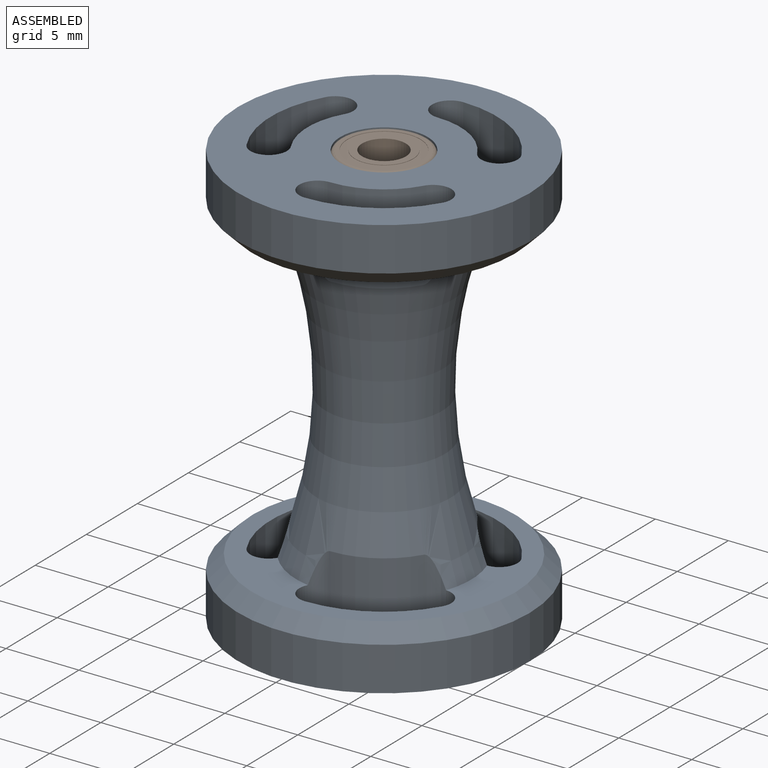
[diagram: assembled view]
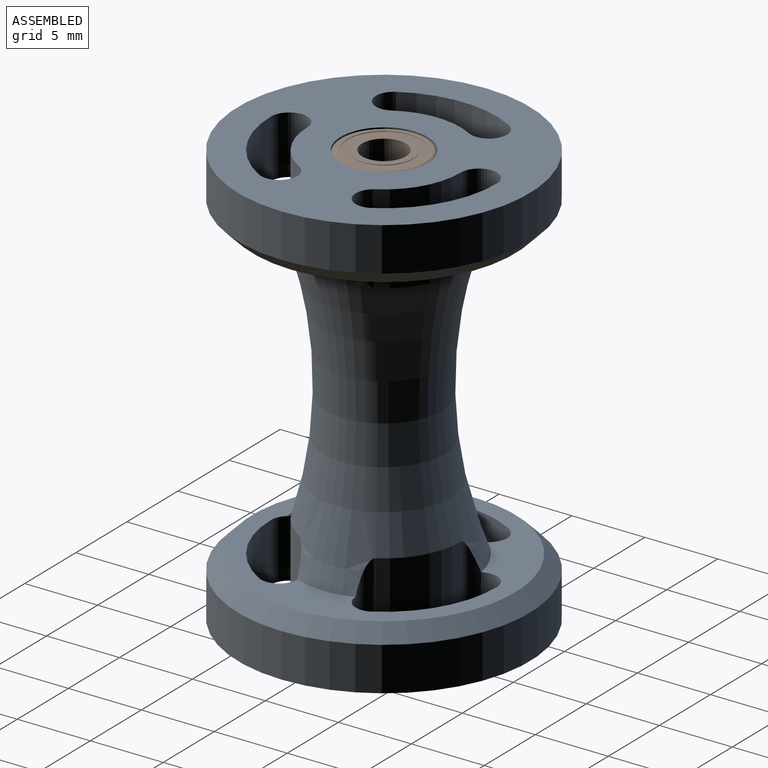
[diagram: assembled view, second angle]
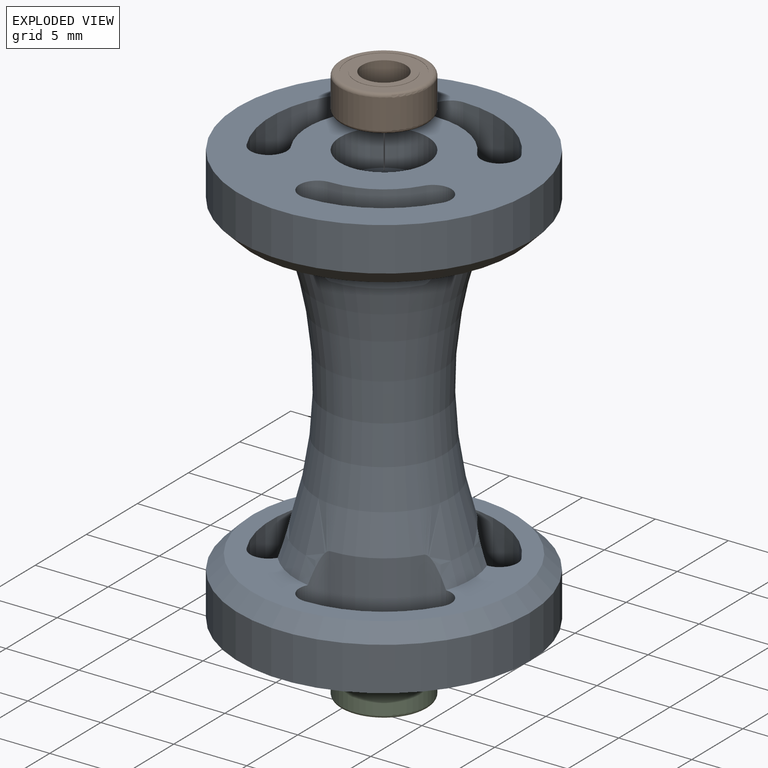
[diagram: exploded view]
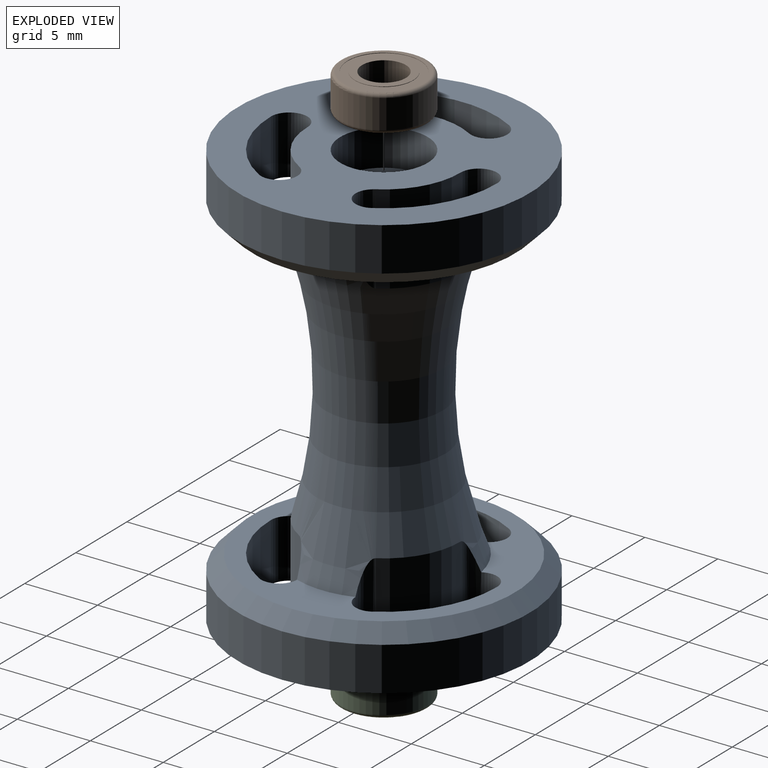
[diagram: exploded view, second angle]
ASSEMBLY  parts=3 mates=4
PART A: 38 faces, bbox 26.6x26.6x40.6 mm
  f0: cylinder r=2mm len=24mm, axis (0,0,-1), area 301.6mm2, adj f33,f35
  f1: cylinder r=10mm len=20mm, axis (0,0,-1), area 188.5mm2, adj f7,f37
  f2: plane 18x18mm, normal (0,0,1), area 92.3mm2, adj f3,f8,f10,f11,f13,f14,f15,f17
  f3: torus R=32.56mm, axis (0,0,-1), area 530.3mm2, adj f2,f5,f8,f9,f10,f12,f13,f15
  f4: cylinder r=10mm len=20mm, axis (0,0,-1), area 188.5mm2, adj f6,f36
  f5: plane 18x18mm, normal (0,0,-1), area 92.3mm2, adj f3,f20,f21,f23,f24,f25,f26,f28
  f6: plane 20x20mm, normal (0,0,1), area 220.1mm2, adj f4,f20,f21,f22,f23,f24,f25,f26
  f7: plane 20x20mm, normal (0,0,-1), area 220.1mm2, adj f1,f8,f9,f10,f11,f12,f13,f14
  f8: cylinder r=1.25mm len=6.14mm, axis (0,0,-1), area 17.5mm2, adj f2,f3,f7,f9,f11
  f9: cylinder r=5.25mm len=6.14mm, axis (0,0,-1), area 33.8mm2, adj f3,f7,f8,f10
  f10: cylinder r=1.25mm len=6.14mm, axis (0,0,-1), area 17.5mm2, adj f2,f3,f7,f9,f11
  f11: cylinder r=7.75mm len=6.71mm, axis (0,0,-1), area 32.5mm2, adj f2,f7,f8,f10
  f12: cylinder r=5.25mm len=6.14mm, axis (0,0,-1), area 33.8mm2, adj f3,f7,f13,f15
  f13: cylinder r=1.25mm len=6.14mm, axis (0,0,-1), area 17.5mm2, adj f2,f3,f7,f12,f14
  f14: cylinder r=7.75mm len=7.75mm, axis (0,0,-1), area 32.5mm2, adj f2,f7,f13,f15
  f15: cylinder r=1.25mm len=6.14mm, axis (0,0,-1), area 17.5mm2, adj f2,f3,f7,f12,f14
  f16: cylinder r=5.25mm len=6.14mm, axis (0,0,-1), area 33.8mm2, adj f3,f7,f17,f19
  f17: cylinder r=1.25mm len=6.14mm, axis (0,0,-1), area 17.5mm2, adj f2,f3,f7,f16,f18
  f18: cylinder r=7.75mm len=6.71mm, axis (0,0,-1), area 32.5mm2, adj f2,f7,f17,f19
  f19: cylinder r=1.25mm len=6.14mm, axis (0,0,-1), area 17.5mm2, adj f2,f3,f7,f16,f18
  f20: cylinder r=7.75mm len=6.71mm, axis (0,0,-1), area 32.5mm2, adj f5,f6,f21,f23
  f21: cylinder r=1.25mm len=6.14mm, axis (0,0,-1), area 17.5mm2, adj f3,f5,f6,f20,f22
  f22: cylinder r=5.25mm len=6.14mm, axis (0,0,-1), area 33.8mm2, adj f3,f6,f21,f23
  f23: cylinder r=1.25mm len=6.14mm, axis (0,0,-1), area 17.5mm2, adj f3,f5,f6,f20,f22
  f24: cylinder r=7.75mm len=7.75mm, axis (0,0,-1), area 32.5mm2, adj f5,f6,f25,f26
  f25: cylinder r=1.25mm len=6.14mm, axis (0,0,-1), area 17.5mm2, adj f3,f5,f6,f24,f27
  f26: cylinder r=1.25mm len=6.14mm, axis (0,0,-1), area 17.5mm2, adj f3,f5,f6,f24,f27
  f27: cylinder r=5.25mm len=6.14mm, axis (0,0,-1), area 33.8mm2, adj f3,f6,f25,f26
  f28: cylinder r=7.75mm len=6.71mm, axis (0,0,-1), area 32.5mm2, adj f5,f6,f29,f30
  f29: cylinder r=1.25mm len=6.14mm, axis (0,0,-1), area 17.5mm2, adj f3,f5,f6,f28,f31
  f30: cylinder r=1.25mm len=6.14mm, axis (0,0,-1), area 17.5mm2, adj f3,f5,f6,f28,f31
  f31: cylinder r=5.25mm len=6.14mm, axis (0,0,-1), area 33.8mm2, adj f3,f6,f29,f30
  f32: cylinder r=3mm len=6mm, axis (0,0,-1), area 47.1mm2, adj f7,f33
  f33: plane 6x6mm, normal (0,0,-1), area 15.7mm2, adj f0,f32
  f34: cylinder r=3mm len=6mm, axis (0,0,1), area 47.1mm2, adj f6,f35
  f35: plane 6x6mm, normal (0,0,1), area 15.7mm2, adj f0,f34
  f36: cone r=10mm half-angle=45deg, axis (0,0,1), area 84.4mm2, adj f4,f5
  f37: cone r=9mm half-angle=45deg, axis (0,0,-1), area 84.4mm2, adj f1,f2
PART B: 14 faces, bbox 6.5x6.5x2.5 mm
  f0: plane 4x4mm, normal (0,0,-1), area 5.5mm2, adj f2,f9
  f1: plane 4x4mm, normal (0,0,1), area 5.5mm2, adj f2,f6
  f2: cylinder r=1.5mm len=3mm, axis (0,0,-1), area 23.6mm2, adj f0,f1
  f3: cylinder r=3mm len=6mm, axis (0,0,-1), area 37.7mm2, adj f12,f13
  f4: plane 5.5x5.5mm, normal (0,0,1), area 4.1mm2, adj f7,f13
  f5: plane 5.5x5.5mm, normal (0,0,-1), area 4.1mm2, adj f10,f12
  f6: cylinder r=2mm len=4mm, axis (0,0,1), area 0.3mm2, adj f1,f8
  f7: cylinder r=2.5mm len=5mm, axis (0,0,1), area 0.4mm2, adj f4,f8
  f8: plane 5x5mm, normal (0,0,1), area 7.1mm2, adj f6,f7
  f9: cylinder r=2mm len=4mm, axis (0,0,-1), area 0.3mm2, adj f0,f11
  f10: cylinder r=2.5mm len=5mm, axis (0,0,-1), area 0.4mm2, adj f5,f11
  f11: plane 5x5mm, normal (0,0,-1), area 7.1mm2, adj f9,f10
  f12: torus R=2.75mm, axis (0,0,1), area 7.2mm2, adj f3,f5
  f13: torus R=2.75mm, axis (0,0,1), area 7.2mm2, adj f3,f4
PART C: same geometry as B
PLACE A t=(-13.21,0.88,-12.77)mm
PLACE B t=(-13.21,0.88,11.73)mm
PLACE C t=(-13.21,0.88,-14.77)mm
MATE planar C.f7 <-> A.f11  axis (0,0,1) through (-13.21,0.88,-12.27)mm
MATE cylindrical C.f3 <-> A.f32  axis (0,0,-1) through (-13.21,0.88,-13.52)mm
MATE cylindrical B.f3 <-> A.f34  axis (0,0,-1) through (-13.21,0.88,11.98)mm
MATE planar B.f10 <-> A.f14  axis (0,0,-1) through (-13.21,0.88,11.73)mm
